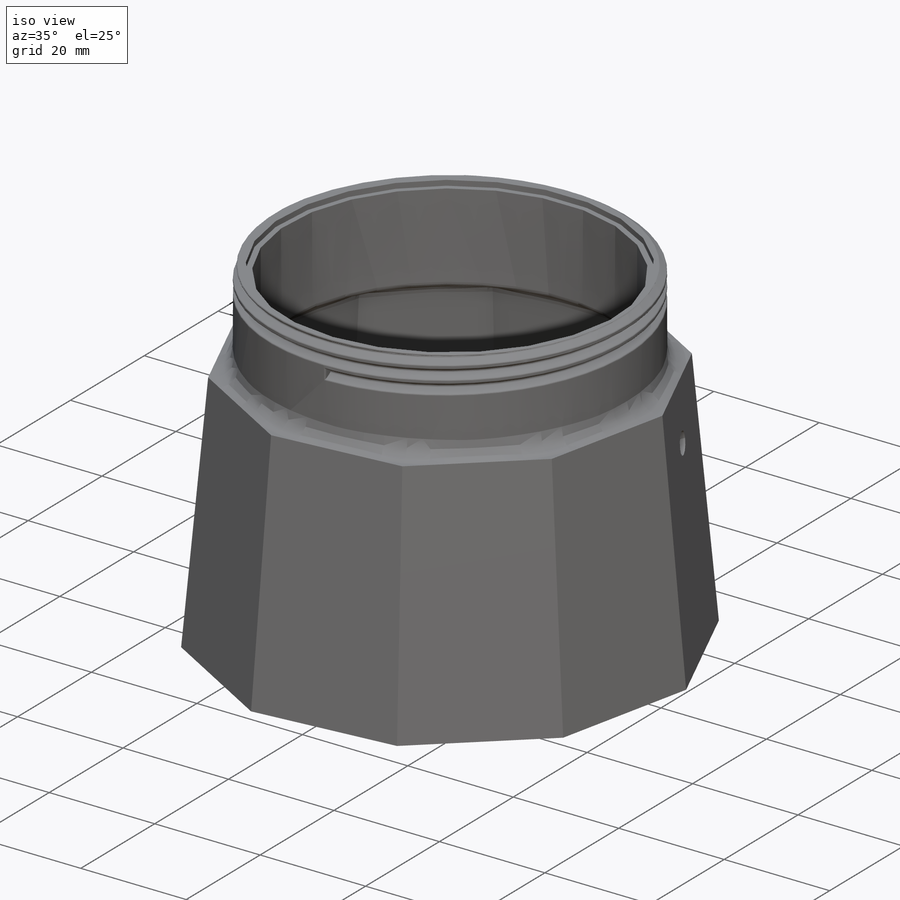
[diagram: iso view]
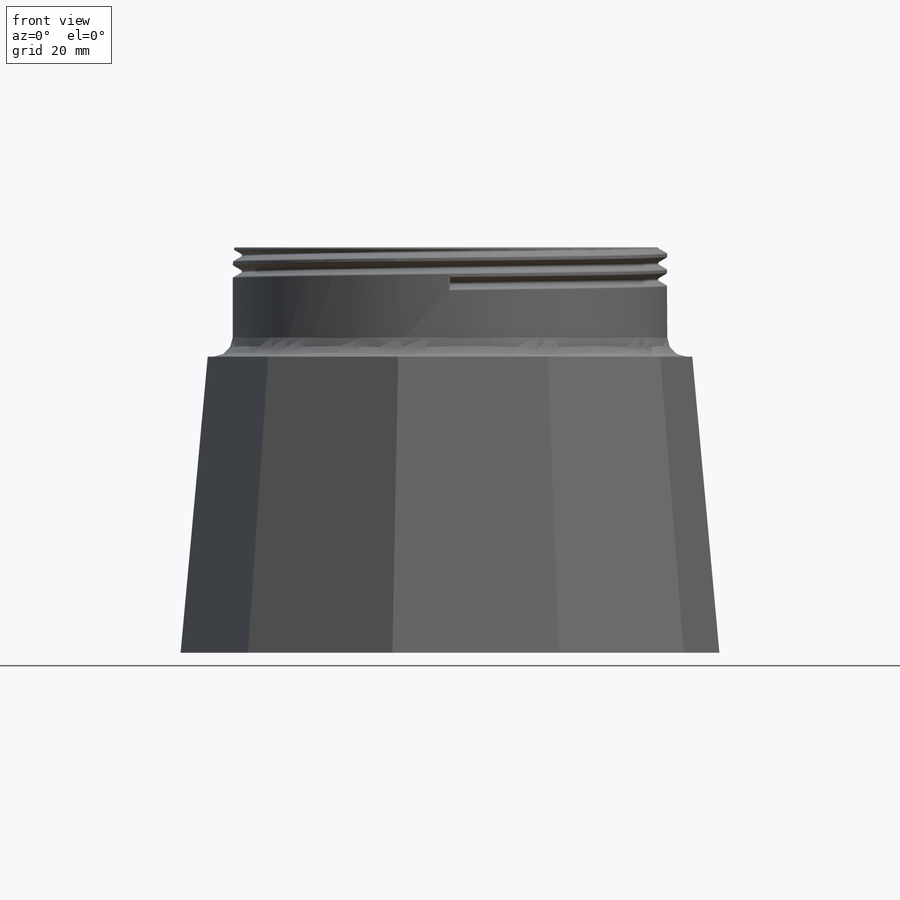
[diagram: front view]
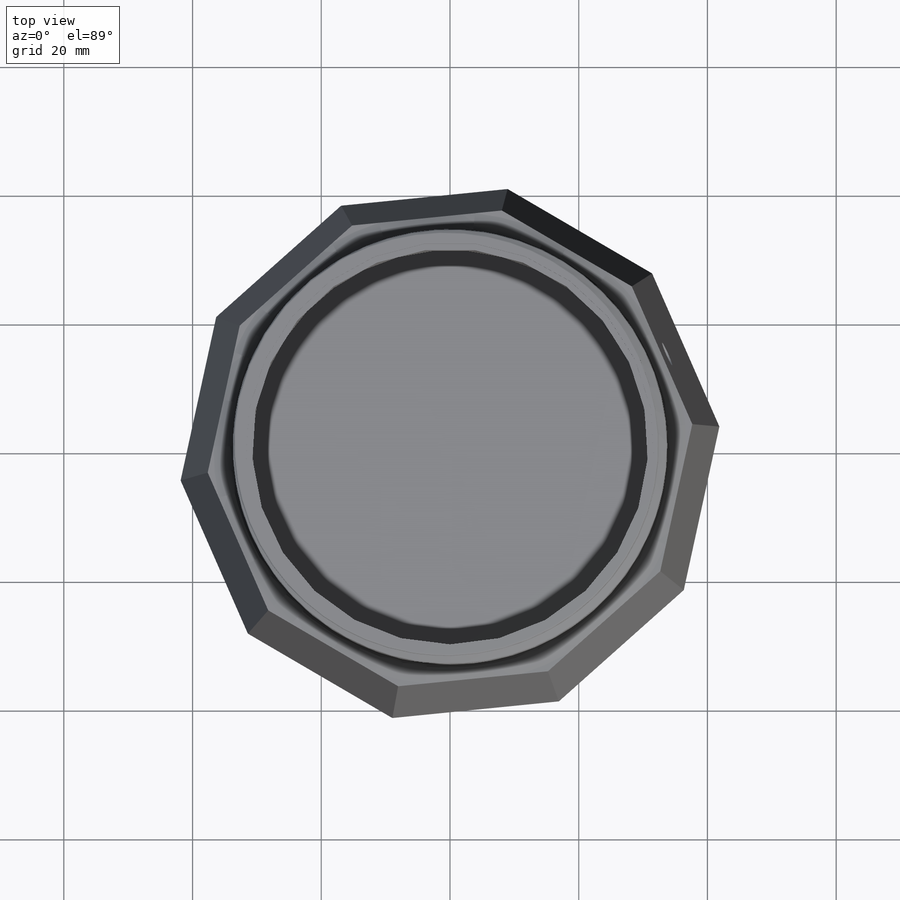
[diagram: top view]
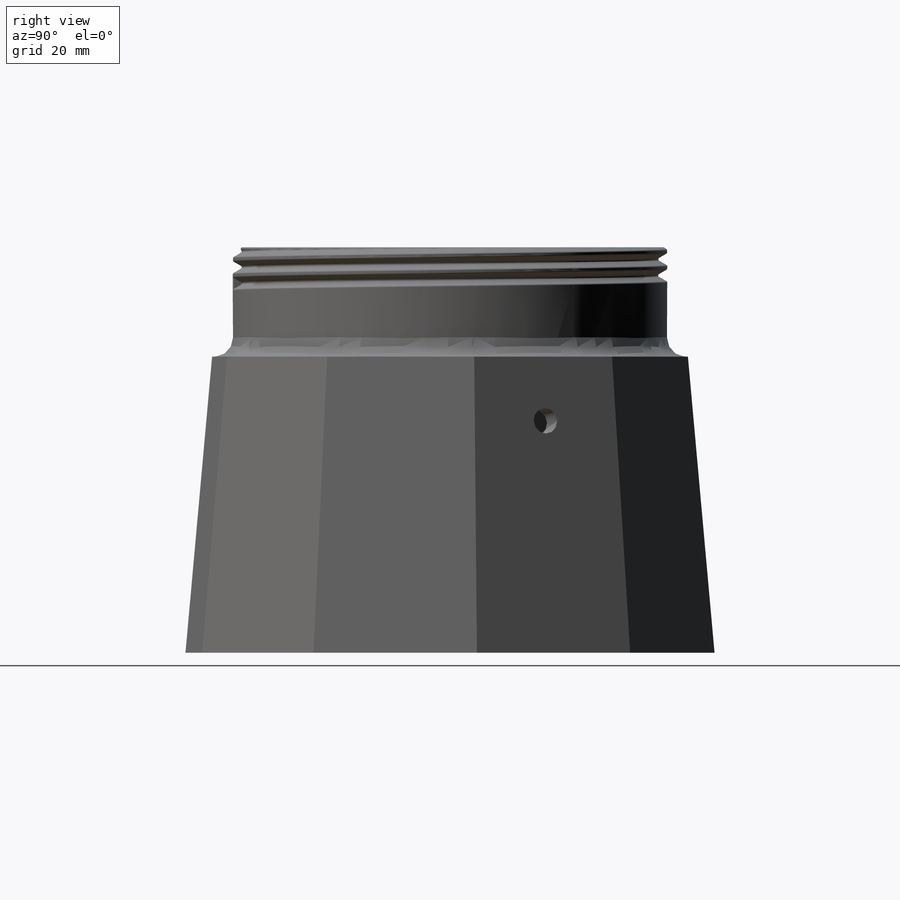
[diagram: right view]
SOLIDWORKS PART (.sldprt)
format: sldprt  version: not decoded by parser v0  size: 669,184 bytes
history: native  units: mm
features: sketch x7, fillet x5, cut_extrude x3, extrude x2, material x1, helix x1, sweep x1 (+11 scaffold rows collapsed)
feature tree (31):
  scaffold x11  (default folders/planes/origin — collapsed)
  material  "Alloy Steel (SS)"
  sketch  "Sketch1"  dims[D1=~48.778322mm]
  extrude  "Boss-Extrude1"  Depth=46mm
  sketch  "Sketch8"  dims[D1=~35.975521mm]
  cut_extrude  "Cut-Extrude2"  Depth=42mm
  sketch  "Sketch9"  dims[D1=34.75mm]
  extrude  "Boss-Extrude6"  Depth=17mm
  fillet  "Fillet5"  Radius=3mm
  sketch  "Sketch10"  dims[D1=10.0mm]
  cut_extrude  "Cut-Extrude3"  Depth=17mm
  sketch  "Sketch12"  dims[D1=~28.999342mm]
  cut_extrude  "Cut-Extrude6"  Depth=1mm
  fillet  "Fillet13"  Radius=1mm
  fillet  "Fillet14"  Radius=2mm
  sketch  "Sketch18"
  sketch  "Sketch19"
  helix  "Helix/Spiral1"  Pitch=7.5mm
  sweep  "Cut-Sweep1"
  fillet  "Fillet15"  Radius=0.25mm
  fillet  "Fillet16"  Radius=0.25mm
decode coverage: 16 of 19 modeling features carry decoded parameters
note: ~ marks probable driven/reference dimensions
note: suppression state not decoded; provenance and decode notes live in map.json
